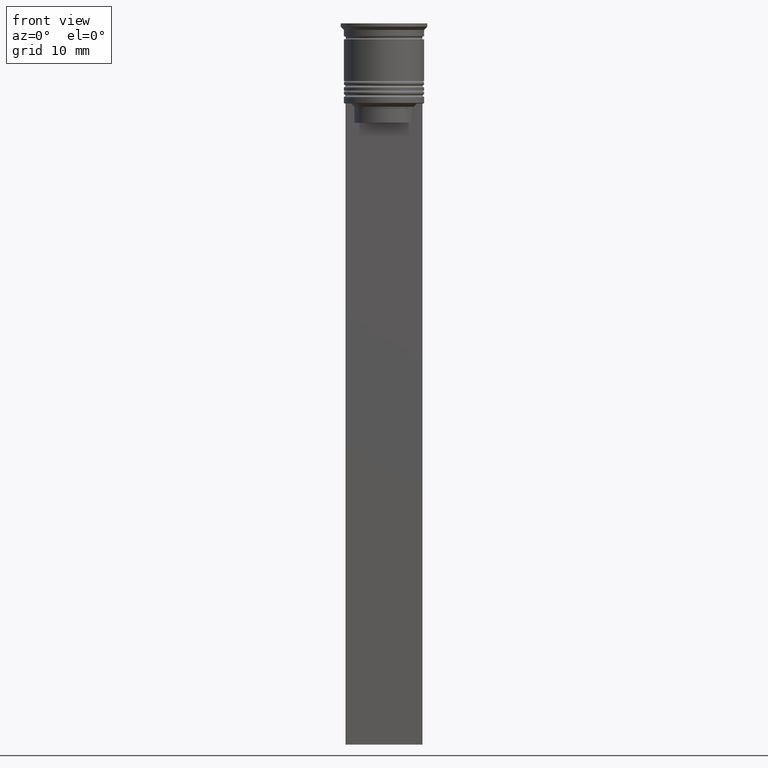
[diagram: clean part render]
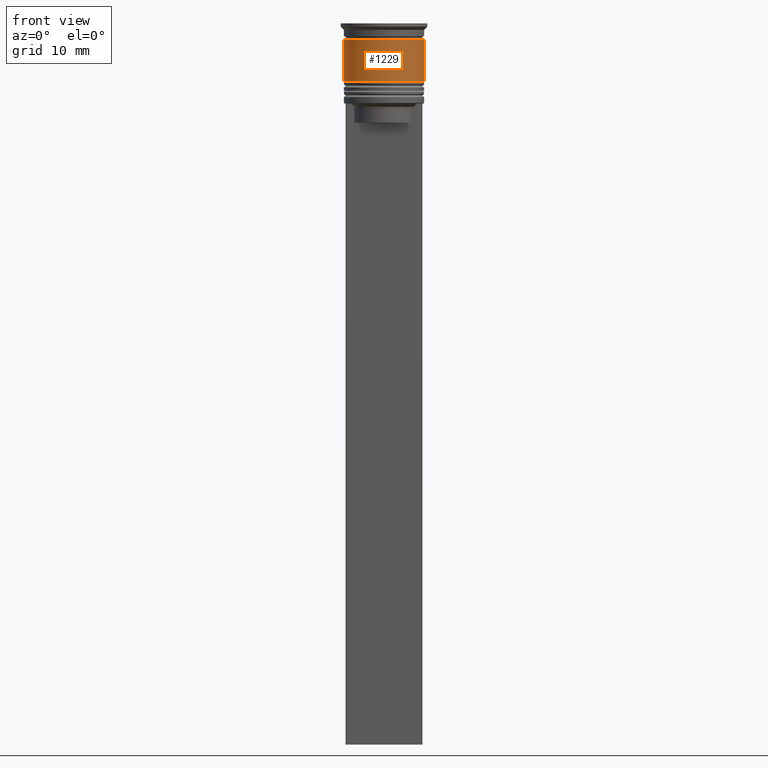
[diagram: same view with one face highlighted and labeled with its STEP entity id]
A machine part, front view. The second image highlights one B-rep face of the part: STEP entity #1229.
In plain terms, the highlighted cylindrical surface (partial cylindrical patch) has radius 6.25 mm, axis along (-0, -0, 1).
Its self-contained STEP definition (entity closure, byte-faithful):
#7 = CARTESIAN_POINT ( 'NONE',  ( -6.249999999999999112, 7.654042494670956620E-16, -2.500000000000000444 ) ) ;
#9 = VERTEX_POINT ( 'NONE', #1698 ) ;
#67 = DIRECTION ( 'NONE',  ( -0.000000000000000000, -0.000000000000000000, 1.000000000000000000 ) ) ;
#107 = ORIENTED_EDGE ( 'NONE', *, *, #949, .T. ) ;
#256 = EDGE_CURVE ( 'NONE', #9, #774, #1446, .T. ) ;
#398 = AXIS2_PLACEMENT_3D ( 'NONE', #1473, #67, #2234 ) ;
#432 = DIRECTION ( 'NONE',  ( -0.000000000000000000, -0.000000000000000000, 1.000000000000000000 ) ) ;
#452 = EDGE_LOOP ( 'NONE', ( #2050, #2326, #107, #1057 ) ) ;
#468 = DIRECTION ( 'NONE',  ( -0.000000000000000000, -0.000000000000000000, 1.000000000000000000 ) ) ;
#562 = FACE_OUTER_BOUND ( 'NONE', #452, .T. ) ;
#720 = EDGE_CURVE ( 'NONE', #1505, #1301, #1339, .T. ) ;
#731 = EDGE_CURVE ( 'NONE', #9, #1505, #1869, .T. ) ;
#774 = VERTEX_POINT ( 'NONE', #2044 ) ;
#936 = CARTESIAN_POINT ( 'NONE',  ( -6.250000000000000000, 7.654042494670957606E-16, 0.000000000000000000 ) ) ;
#949 = EDGE_CURVE ( 'NONE', #774, #1301, #2114, .T. ) ;
#979 = DIRECTION ( 'NONE',  ( -0.000000000000000000, -0.000000000000000000, 1.000000000000000000 ) ) ;
#1056 = DIRECTION ( 'NONE',  ( -0.000000000000000000, -0.000000000000000000, 1.000000000000000000 ) ) ;
#1057 = ORIENTED_EDGE ( 'NONE', *, *, #720, .F. ) ;
#1065 = CARTESIAN_POINT ( 'NONE',  ( 0.000000000000000000, 0.000000000000000000, -9.000000000000001776 ) ) ;
#1145 = CYLINDRICAL_SURFACE ( 'NONE', #398, 6.250000000000000000 ) ;
#1146 = CARTESIAN_POINT ( 'NONE',  ( 0.000000000000000000, 0.000000000000000000, -2.500000000000000444 ) ) ;
#1156 = DIRECTION ( 'NONE',  ( 1.000000000000000000, 0.000000000000000000, 0.000000000000000000 ) ) ;
#1229 = ADVANCED_FACE ( 'NONE', ( #562 ), #1145, .T. ) ;
#1301 = VERTEX_POINT ( 'NONE', #1346 ) ;
#1307 = AXIS2_PLACEMENT_3D ( 'NONE', #1065, #1056, #1770 ) ;
#1339 = CIRCLE ( 'NONE', #1799, 6.249999999999999112 ) ;
#1346 = CARTESIAN_POINT ( 'NONE',  ( 6.249999999999999112, 0.000000000000000000, -2.500000000000000444 ) ) ;
#1446 = CIRCLE ( 'NONE', #1307, 6.250000000000000888 ) ;
#1450 = VECTOR ( 'NONE', #468, 1000.000000000000000 ) ;
#1473 = CARTESIAN_POINT ( 'NONE',  ( 0.000000000000000000, 0.000000000000000000, 0.000000000000000000 ) ) ;
#1505 = VERTEX_POINT ( 'NONE', #7 ) ;
#1567 = VECTOR ( 'NONE', #979, 1000.000000000000000 ) ;
#1698 = CARTESIAN_POINT ( 'NONE',  ( -6.250000000000001776, 7.654042494670959579E-16, -9.000000000000001776 ) ) ;
#1770 = DIRECTION ( 'NONE',  ( 1.000000000000000000, 0.000000000000000000, 0.000000000000000000 ) ) ;
#1799 = AXIS2_PLACEMENT_3D ( 'NONE', #1146, #432, #1156 ) ;
#1869 = LINE ( 'NONE', #936, #1567 ) ;
#2044 = CARTESIAN_POINT ( 'NONE',  ( 6.250000000000000888, 0.000000000000000000, -9.000000000000001776 ) ) ;
#2050 = ORIENTED_EDGE ( 'NONE', *, *, #731, .F. ) ;
#2086 = CARTESIAN_POINT ( 'NONE',  ( 6.250000000000000000, 0.000000000000000000, 0.000000000000000000 ) ) ;
#2114 = LINE ( 'NONE', #2086, #1450 ) ;
#2234 = DIRECTION ( 'NONE',  ( 1.000000000000000000, 0.000000000000000000, 0.000000000000000000 ) ) ;
#2326 = ORIENTED_EDGE ( 'NONE', *, *, #256, .T. ) ;